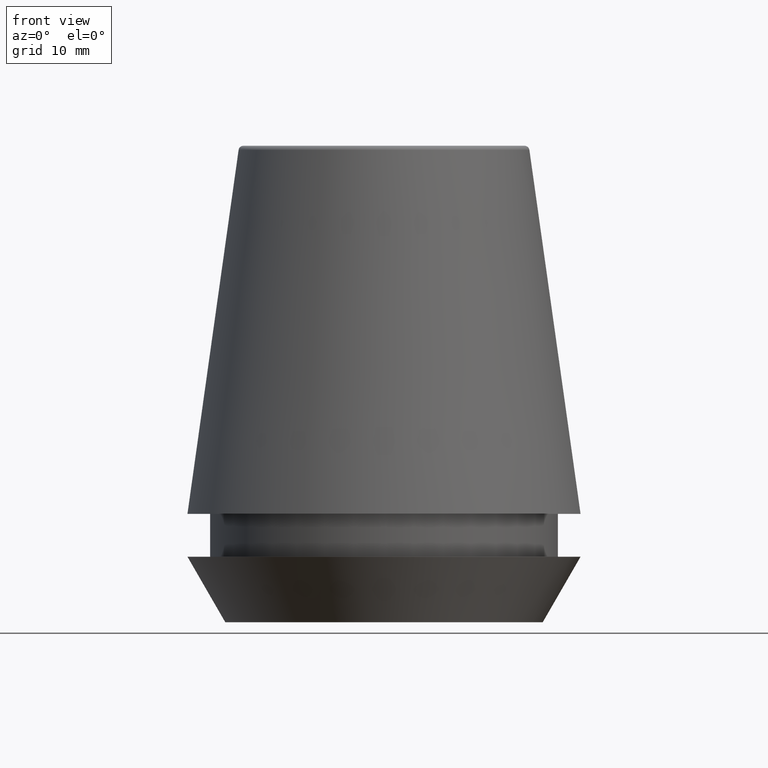
[diagram: clean part render]
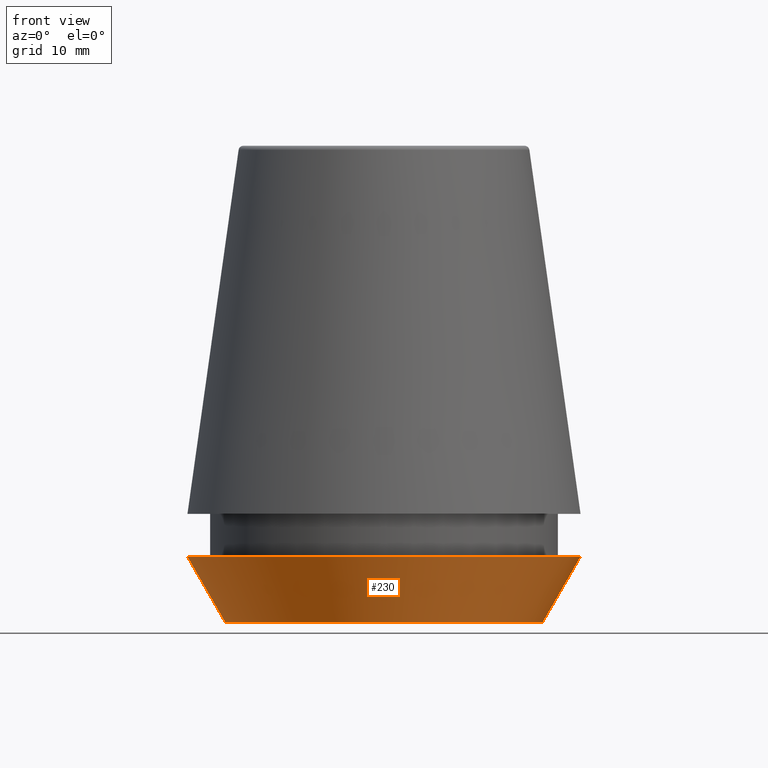
[diagram: same view with one face highlighted and labeled with its STEP entity id]
A machine part, front view. The second image highlights one B-rep face of the part: STEP entity #230.
In plain terms, the highlighted conical surface has half-angle 30 deg.
Its self-contained STEP definition (entity closure, byte-faithful):
#5 = VECTOR ( 'NONE', #114, 999.9999999999998900 ) ;
#12 = CARTESIAN_POINT ( 'NONE',  ( -13.32457351945710200, 1.826228424826902600E-015, 0.0000000000000000000 ) ) ;
#17 = CARTESIAN_POINT ( 'NONE',  ( 16.50000000000000000, 0.0000000000000000000, 5.500000000000005300 ) ) ;
#30 = CIRCLE ( 'NONE', #115, 16.50000000000000000 ) ;
#38 = CONICAL_SURFACE ( 'NONE', #168, 13.32457351945710200, 0.5235987755982927100 ) ;
#40 = CARTESIAN_POINT ( 'NONE',  ( 0.0000000000000000000, 0.0000000000000000000, 5.500000000000005300 ) ) ;
#42 = ORIENTED_EDGE ( 'NONE', *, *, #104, .T. ) ;
#65 = DIRECTION ( 'NONE',  ( 1.000000000000000000, 0.0000000000000000000, 0.0000000000000000000 ) ) ;
#77 = ORIENTED_EDGE ( 'NONE', *, *, #385, .T. ) ;
#78 = LINE ( 'NONE', #146, #5 ) ;
#101 = CARTESIAN_POINT ( 'NONE',  ( 0.0000000000000000000, 0.0000000000000000000, 0.0000000000000000000 ) ) ;
#104 = EDGE_CURVE ( 'NONE', #302, #281, #260, .T. ) ;
#114 = DIRECTION ( 'NONE',  ( 0.4999999999999947300, 0.0000000000000000000, 0.8660254037844418200 ) ) ;
#115 = AXIS2_PLACEMENT_3D ( 'NONE', #40, #285, #312 ) ;
#146 = CARTESIAN_POINT ( 'NONE',  ( 13.32457351945710200, 0.0000000000000000000, 0.0000000000000000000 ) ) ;
#157 = CARTESIAN_POINT ( 'NONE',  ( 0.0000000000000000000, 0.0000000000000000000, 0.0000000000000000000 ) ) ;
#168 = AXIS2_PLACEMENT_3D ( 'NONE', #157, #309, #65 ) ;
#200 = DIRECTION ( 'NONE',  ( 1.000000000000000000, 0.0000000000000000000, 0.0000000000000000000 ) ) ;
#201 = LINE ( 'NONE', #278, #282 ) ;
#230 = ADVANCED_FACE ( 'NONE', ( #355 ), #38, .T. ) ;
#238 = AXIS2_PLACEMENT_3D ( 'NONE', #101, #269, #200 ) ;
#244 = EDGE_CURVE ( 'NONE', #302, #377, #201, .T. ) ;
#246 = ORIENTED_EDGE ( 'NONE', *, *, #244, .F. ) ;
#260 = CIRCLE ( 'NONE', #238, 13.32457351945710200 ) ;
#269 = DIRECTION ( 'NONE',  ( -0.0000000000000000000, -0.0000000000000000000, 1.000000000000000000 ) ) ;
#278 = CARTESIAN_POINT ( 'NONE',  ( -13.32457351945710200, 1.631789631060672300E-015, 0.0000000000000000000 ) ) ;
#279 = DIRECTION ( 'NONE',  ( -0.4999999999999947300, 6.123233995736700700E-017, 0.8660254037844418200 ) ) ;
#281 = VERTEX_POINT ( 'NONE', #332 ) ;
#282 = VECTOR ( 'NONE', #279, 999.9999999999998900 ) ;
#285 = DIRECTION ( 'NONE',  ( -0.0000000000000000000, -0.0000000000000000000, 1.000000000000000000 ) ) ;
#286 = VERTEX_POINT ( 'NONE', #17 ) ;
#299 = ORIENTED_EDGE ( 'NONE', *, *, #304, .F. ) ;
#302 = VERTEX_POINT ( 'NONE', #12 ) ;
#304 = EDGE_CURVE ( 'NONE', #377, #286, #30, .T. ) ;
#305 = CARTESIAN_POINT ( 'NONE',  ( -16.50000000000000000, 2.020667218593133100E-015, 5.500000000000005300 ) ) ;
#309 = DIRECTION ( 'NONE',  ( -0.0000000000000000000, -0.0000000000000000000, 1.000000000000000000 ) ) ;
#312 = DIRECTION ( 'NONE',  ( 1.000000000000000000, 0.0000000000000000000, 0.0000000000000000000 ) ) ;
#332 = CARTESIAN_POINT ( 'NONE',  ( 13.32457351945710200, 0.0000000000000000000, 0.0000000000000000000 ) ) ;
#355 = FACE_OUTER_BOUND ( 'NONE', #376, .T. ) ;
#376 = EDGE_LOOP ( 'NONE', ( #246, #42, #77, #299 ) ) ;
#377 = VERTEX_POINT ( 'NONE', #305 ) ;
#385 = EDGE_CURVE ( 'NONE', #281, #286, #78, .T. ) ;